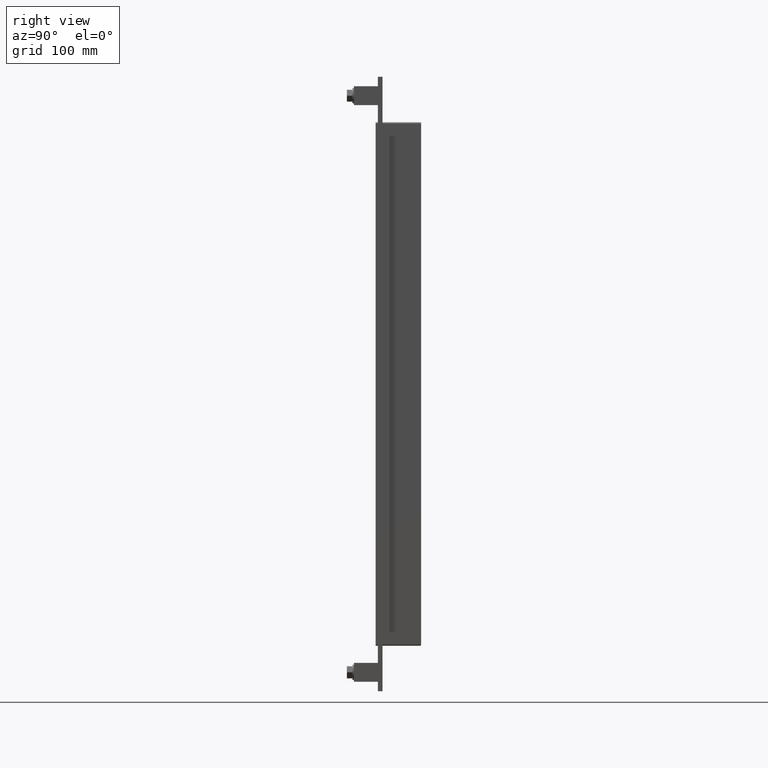
[diagram: clean part render]
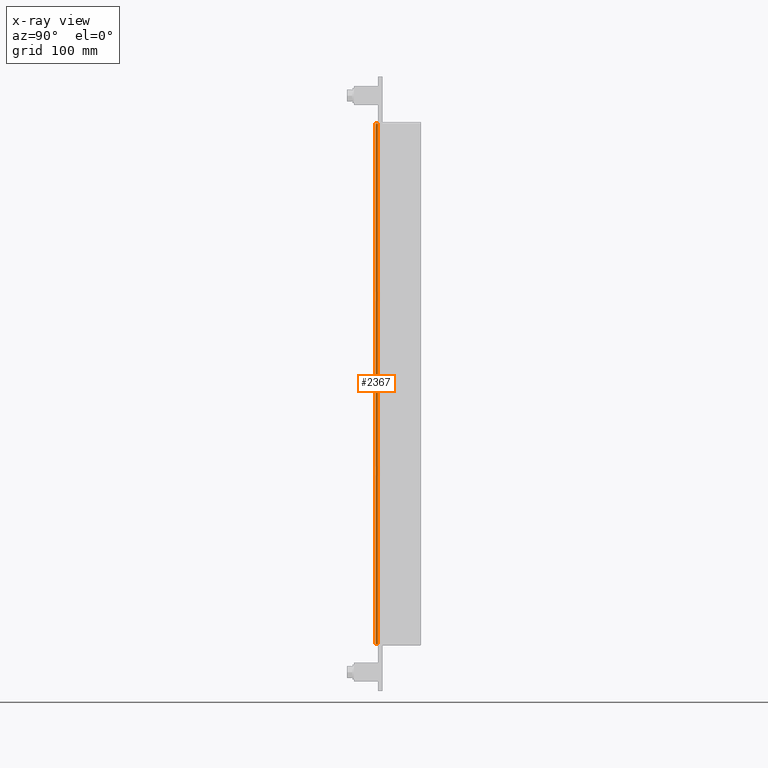
[diagram: x-ray — body ghosted, one internal face saturated and labeled with its STEP entity id]
A machine part, right view, then the same camera in x-ray: the body is ghosted and one INTERNAL B-rep face — a face not visible from any outside direction — is saturated and labeled: STEP entity #2367.
In plain terms, the highlighted planar face has unit normal (1, 0, 0).
Its self-contained STEP definition (entity closure, byte-faithful):
#1440=CARTESIAN_POINT('',(196.75000000000006,-3.0,-343.00000000000006));
#1441=VERTEX_POINT('',#1440);
#1449=CARTESIAN_POINT('',(196.75000000000006,-3.0,343.00000000000006));
#1450=VERTEX_POINT('',#1449);
#1451=CARTESIAN_POINT('',(196.75000000000006,-3.0,-343.00000000000006));
#1452=DIRECTION('',(0.0,0.0,1.0));
#1453=VECTOR('',#1452,686.0);
#1454=LINE('',#1451,#1453);
#1455=EDGE_CURVE('',#1441,#1450,#1454,.T.);
#2126=CARTESIAN_POINT('',(196.75000000000006,0.0,343.00000000000006));
#2127=VERTEX_POINT('',#2126);
#2135=CARTESIAN_POINT('',(196.75000000000006,0.0,-343.00000000000006));
#2136=VERTEX_POINT('',#2135);
#2137=CARTESIAN_POINT('',(196.75000000000006,0.0,-343.00000000000011));
#2138=DIRECTION('',(0.0,0.0,1.0));
#2139=VECTOR('',#2138,686.00000000000011);
#2140=LINE('',#2137,#2139);
#2141=EDGE_CURVE('',#2136,#2127,#2140,.T.);
#2317=CARTESIAN_POINT('',(196.75000000000006,0.0,-343.00000000000006));
#2318=DIRECTION('',(0.0,-1.0,0.0));
#2319=VECTOR('',#2318,3.0);
#2320=LINE('',#2317,#2319);
#2321=EDGE_CURVE('',#2136,#1441,#2320,.T.);
#2351=CARTESIAN_POINT('',(196.75000000000006,0.0,345.00000000000006));
#2352=DIRECTION('',(1.0,0.0,0.0));
#2353=DIRECTION('',(0.0,0.0,-1.0));
#2354=AXIS2_PLACEMENT_3D('',#2351,#2352,#2353);
#2355=PLANE('',#2354);
#2356=ORIENTED_EDGE('',*,*,#2141,.T.);
#2357=CARTESIAN_POINT('',(196.75000000000006,-3.0,343.00000000000006));
#2358=DIRECTION('',(0.0,1.0,0.0));
#2359=VECTOR('',#2358,3.0);
#2360=LINE('',#2357,#2359);
#2361=EDGE_CURVE('',#1450,#2127,#2360,.T.);
#2362=ORIENTED_EDGE('',*,*,#2361,.F.);
#2363=ORIENTED_EDGE('',*,*,#1455,.F.);
#2364=ORIENTED_EDGE('',*,*,#2321,.F.);
#2365=EDGE_LOOP('',(#2356,#2362,#2363,#2364));
#2366=FACE_OUTER_BOUND('',#2365,.T.);
#2367=ADVANCED_FACE('',(#2366),#2355,.T.);